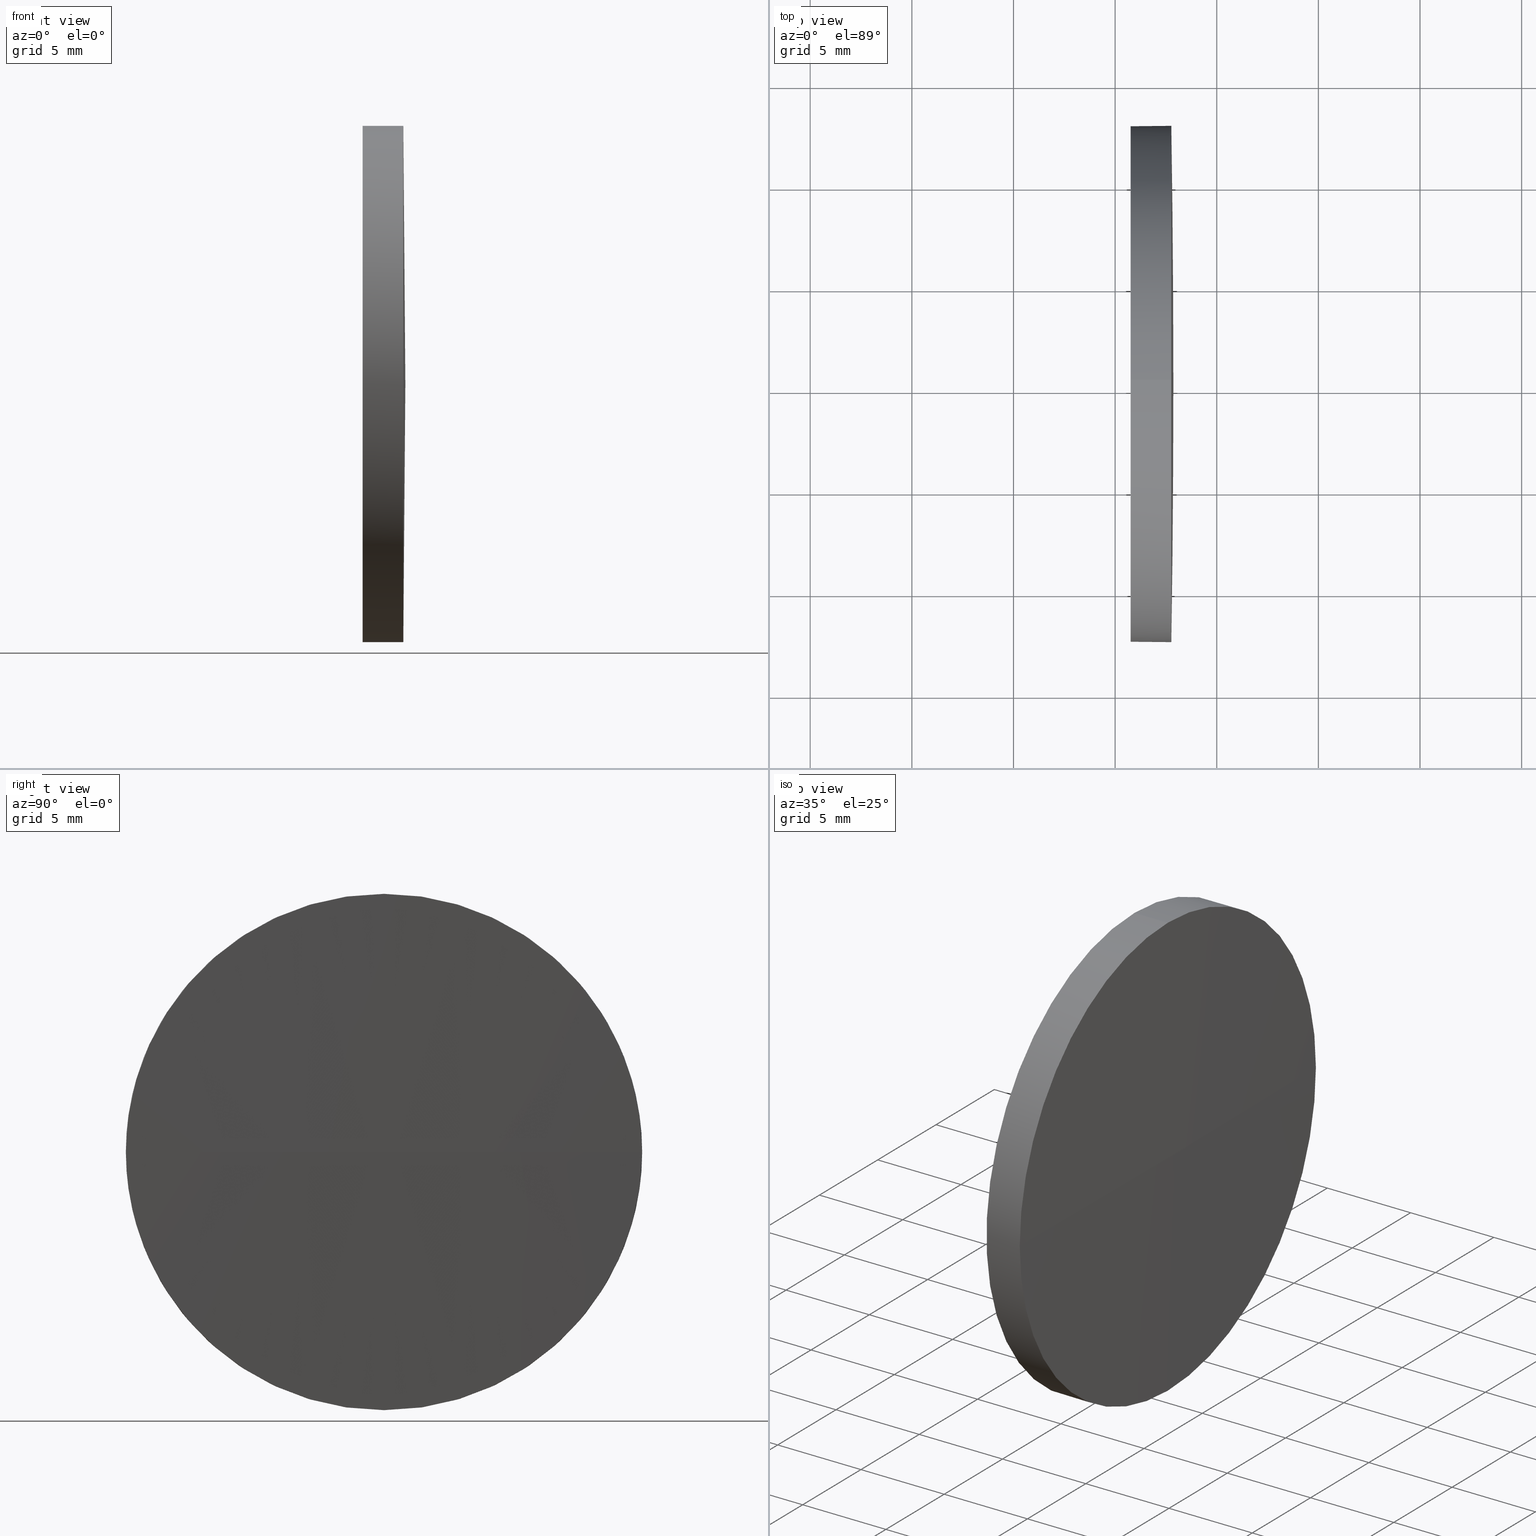
[diagram: canonical four-view strip — front | top / right | iso, engineering-drawing reading convention]
A machine part, canonical four-view strip (front | top / right | iso — engineering-drawing reading convention). The complete STEP part file that produces these views, byte-faithful:
ISO-10303-21;
HEADER;
FILE_DESCRIPTION (( 'STEP AP214' ),
    '1' );
FILE_NAME ('100521.STEP',
    '2019-06-13T03:09:54',
    ( '' ),
    ( '' ),
    'SwSTEP 2.0',
    'SolidWorks 2016',
    '' );
FILE_SCHEMA (( 'AUTOMOTIVE_DESIGN' ));
ENDSEC;

DATA;
#1 = ORIENTED_EDGE ( 'NONE', *, *, #150, .F. ) ;
#2 = DIRECTION ( 'NONE',  ( 0.0000000000000000000, 1.000000000000000000, 1.224646799147353500E-016 ) ) ;
#3 = EDGE_CURVE ( 'NONE', #145, #9, #140, .T. ) ;
#4 = DIRECTION ( 'NONE',  ( -1.000000000000000000, -0.0000000000000000000, -0.0000000000000000000 ) ) ;
#5 = VERTEX_POINT ( 'NONE', #112 ) ;
#6 = CARTESIAN_POINT ( 'NONE',  ( 115.7645554762012000, 65.23355492641219700, 0.0000000000000000000 ) ) ;
#7 = AXIS2_PLACEMENT_3D ( 'NONE', #133, #57, #54 ) ;
#8 = LINE ( 'NONE', #120, #185 ) ;
#9 = VERTEX_POINT ( 'NONE', #15 ) ;
#10 = ORIENTED_EDGE ( 'NONE', *, *, #183, .F. ) ;
#11 = ORIENTED_EDGE ( 'NONE', *, *, #114, .T. ) ;
#12 = AXIS2_PLACEMENT_3D ( 'NONE', #173, #141, #105 ) ;
#13 = EDGE_CURVE ( 'NONE', #137, #138, #101, .T. ) ;
#14 = CLOSED_SHELL ( 'NONE', ( #139, #182, #78, #129, #186 ) ) ;
#15 = CARTESIAN_POINT ( 'NONE',  ( 117.7645554762012100, 52.53355492641213000, -1.555301434917037300E-015 ) ) ;
#16 = COLOUR_RGB ( '',1.000000000000000000, 1.000000000000000000, 1.000000000000000000 ) ;
#17 = CIRCLE ( 'NONE', #110, 806.5000000000459300 ) ;
#18 = AXIS2_PLACEMENT_3D ( 'NONE', #116, #131, #53 ) ;
#19 = DIRECTION ( 'NONE',  ( 0.0000000000000000000, 0.0000000000000000000, 1.000000000000000000 ) ) ;
#20 =( NAMED_UNIT ( * ) PLANE_ANGLE_UNIT ( ) SI_UNIT ( $, .RADIAN. ) );
#21 = CARTESIAN_POINT ( 'NONE',  ( 117.7645554762012000, 65.23355492641219700, -12.70000000000000300 ) ) ;
#22 =( NAMED_UNIT ( * ) SI_UNIT ( $, .STERADIAN. ) SOLID_ANGLE_UNIT ( ) );
#23 = CIRCLE ( 'NONE', #154, 12.70000000000000300 ) ;
#24 = COLOUR_RGB ( '',1.000000000000000000, 1.000000000000000000, 1.000000000000000000 ) ;
#25 = APPLICATION_CONTEXT ( 'automotive_design' ) ;
#26 =( NAMED_UNIT ( * ) PLANE_ANGLE_UNIT ( ) SI_UNIT ( $, .RADIAN. ) );
#27 = AXIS2_PLACEMENT_3D ( 'NONE', #144, #132, #155 ) ;
#28 = DIRECTION ( 'NONE',  ( 1.000000000000000000, 0.0000000000000000000, 0.0000000000000000000 ) ) ;
#29 = PRESENTATION_STYLE_ASSIGNMENT (( #159 ) ) ;
#30 = DIRECTION ( 'NONE',  ( 0.0000000000000000000, 0.0000000000000000000, -1.000000000000000000 ) ) ;
#31 = EDGE_CURVE ( 'NONE', #93, #9, #17, .T. ) ;
#32 = PRODUCT ( '100521', '100521', '', ( #73 ) ) ;
#33 =( GEOMETRIC_REPRESENTATION_CONTEXT ( 3 ) GLOBAL_UNCERTAINTY_ASSIGNED_CONTEXT ( ( #168 ) ) GLOBAL_UNIT_ASSIGNED_CONTEXT ( ( #109, #26, #163 ) ) REPRESENTATION_CONTEXT ( 'NONE', 'WORKASPACE' ) );
#34 = CYLINDRICAL_SURFACE ( 'NONE', #151, 12.70000000000000300 ) ;
#35 = AXIS2_PLACEMENT_3D ( 'NONE', #108, #157, #143 ) ;
#36 = PRODUCT_DEFINITION_SHAPE ( 'NONE', 'NONE',  #41 ) ;
#37 = ORIENTED_EDGE ( 'NONE', *, *, #130, .T. ) ;
#38 = ORIENTED_EDGE ( 'NONE', *, *, #3, .F. ) ;
#39 = FILL_AREA_STYLE ('',( #158 ) ) ;
#40 = CARTESIAN_POINT ( 'NONE',  ( 117.7645554762012000, 65.23355492641219700, 0.0000000000000000000 ) ) ;
#41 = PRODUCT_DEFINITION ( 'δ֪', '', #51, #67 ) ;
#42 =( GEOMETRIC_REPRESENTATION_CONTEXT ( 3 ) GLOBAL_UNCERTAINTY_ASSIGNED_CONTEXT ( ( #60 ) ) GLOBAL_UNIT_ASSIGNED_CONTEXT ( ( #125, #61, #43 ) ) REPRESENTATION_CONTEXT ( 'NONE', 'WORKASPACE' ) );
#43 =( NAMED_UNIT ( * ) SI_UNIT ( $, .STERADIAN. ) SOLID_ANGLE_UNIT ( ) );
#44 = ORIENTED_EDGE ( 'NONE', *, *, #91, .T. ) ;
#45 = DIRECTION ( 'NONE',  ( 0.0000000000000000000, 0.0000000000000000000, 1.000000000000000000 ) ) ;
#46 = PRESENTATION_LAYER_ASSIGNMENT (  '', '', ( #167 ) ) ;
#47 = SURFACE_STYLE_FILL_AREA ( #126 ) ;
#48 = ORIENTED_EDGE ( 'NONE', *, *, #3, .T. ) ;
#49 = VERTEX_POINT ( 'NONE', #118 ) ;
#50 = AXIS2_PLACEMENT_3D ( 'NONE', #76, #88, #30 ) ;
#51 = PRODUCT_DEFINITION_FORMATION_WITH_SPECIFIED_SOURCE ( '�κ�', '', #32, .NOT_KNOWN. ) ;
#52 = CIRCLE ( 'NONE', #134, 12.70000000000000300 ) ;
#53 = DIRECTION ( 'NONE',  ( 0.0000000000000000000, 0.0000000000000000000, 1.000000000000000000 ) ) ;
#54 = DIRECTION ( 'NONE',  ( 1.000000000000000000, 0.0000000000000000000, 0.0000000000000000000 ) ) ;
#55 = CARTESIAN_POINT ( 'NONE',  ( -688.6354445238448500, 65.23355492641130100, 0.0000000000000000000 ) ) ;
#56 = DIRECTION ( 'NONE',  ( -1.000000000000000000, -0.0000000000000000000, -0.0000000000000000000 ) ) ;
#57 = DIRECTION ( 'NONE',  ( -0.0000000000000000000, 0.0000000000000000000, 1.000000000000000000 ) ) ;
#58 = ORIENTED_EDGE ( 'NONE', *, *, #183, .T. ) ;
#59 = SPHERICAL_SURFACE ( 'NONE', #124, 806.5000000000460400 ) ;
#60 = UNCERTAINTY_MEASURE_WITH_UNIT (LENGTH_MEASURE( 1.000000000000000100E-005 ), #125, 'distance_accuracy_value', 'NONE');
#61 =( NAMED_UNIT ( * ) PLANE_ANGLE_UNIT ( ) SI_UNIT ( $, .RADIAN. ) );
#62 = VECTOR ( 'NONE', #104, 1000.000000000000000 ) ;
#63 = MECHANICAL_DESIGN_GEOMETRIC_PRESENTATION_REPRESENTATION (  '', ( #167 ), #42 ) ;
#64 = CIRCLE ( 'NONE', #7, 806.5000000000460400 ) ;
#65 = EDGE_LOOP ( 'NONE', ( #153, #37, #128, #103 ) ) ;
#66 = EDGE_CURVE ( 'NONE', #9, #137, #179, .T. ) ;
#67 = PRODUCT_DEFINITION_CONTEXT ( 'detailed design', #121, 'design' ) ;
#68 = DIRECTION ( 'NONE',  ( -0.0000000000000000000, 0.0000000000000000000, -1.000000000000000000 ) ) ;
#69 = DIRECTION ( 'NONE',  ( 0.0000000000000000000, 1.224646799147353200E-016, -1.000000000000000000 ) ) ;
#70 = DIRECTION ( 'NONE',  ( -1.000000000000000000, -0.0000000000000000000, -0.0000000000000000000 ) ) ;
#71 = CARTESIAN_POINT ( 'NONE',  ( 117.7645554762012100, 77.93355492641137500, 0.0000000000000000000 ) ) ;
#72 = PRODUCT_RELATED_PRODUCT_CATEGORY ( 'part', '', ( #32 ) ) ;
#73 = PRODUCT_CONTEXT ( 'NONE', #25, 'mechanical' ) ;
#74 = MANIFOLD_SOLID_BREP ( '��ת1', #14 ) ;
#75 = MECHANICAL_DESIGN_GEOMETRIC_PRESENTATION_REPRESENTATION (  '', ( #96 ), #162 ) ;
#76 = CARTESIAN_POINT ( 'NONE',  ( 115.7645554762012000, 65.23355492641219700, 0.0000000000000000000 ) ) ;
#77 = FACE_OUTER_BOUND ( 'NONE', #156, .T. ) ;
#78 = ADVANCED_FACE ( 'NONE', ( #164 ), #59, .T. ) ;
#79 = FACE_OUTER_BOUND ( 'NONE', #123, .T. ) ;
#80 = ORIENTED_EDGE ( 'NONE', *, *, #91, .F. ) ;
#81 = DIRECTION ( 'NONE',  ( 0.0000000000000000000, 0.0000000000000000000, 1.000000000000000000 ) ) ;
#82 = CARTESIAN_POINT ( 'NONE',  ( 117.8645554762012300, 65.23355492641135800, 0.0000000000000000000 ) ) ;
#83 = AXIS2_PLACEMENT_3D ( 'NONE', #117, #181, #28 ) ;
#84 =( LENGTH_UNIT ( ) NAMED_UNIT ( * ) SI_UNIT ( .MILLI., .METRE. ) );
#85 = CARTESIAN_POINT ( 'NONE',  ( 117.7645554762012000, 65.23355492641219700, 0.0000000000000000000 ) ) ;
#86 = FILL_AREA_STYLE_COLOUR ( '', #16 ) ;
#87 = ORIENTED_EDGE ( 'NONE', *, *, #89, .F. ) ;
#88 = DIRECTION ( 'NONE',  ( 1.000000000000000000, 0.0000000000000000000, 0.0000000000000000000 ) ) ;
#89 = EDGE_CURVE ( 'NONE', #138, #145, #52, .T. ) ;
#90 = ORIENTED_EDGE ( 'NONE', *, *, #150, .T. ) ;
#91 = EDGE_CURVE ( 'NONE', #137, #49, #178, .T. ) ;
#92 = UNCERTAINTY_MEASURE_WITH_UNIT (LENGTH_MEASURE( 1.000000000000000100E-005 ), #84, 'distance_accuracy_value', 'NONE');
#93 = VERTEX_POINT ( 'NONE', #82 ) ;
#94 = PLANE ( 'NONE',  #50 ) ;
#95 = DIRECTION ( 'NONE',  ( 0.0000000000000000000, 1.000000000000000000, 0.0000000000000000000 ) ) ;
#96 = STYLED_ITEM ( 'NONE', ( #29 ), #74 ) ;
#97 = SURFACE_SIDE_STYLE ('',( #166 ) ) ;
#98 = ORIENTED_EDGE ( 'NONE', *, *, #114, .F. ) ;
#99 = APPLICATION_PROTOCOL_DEFINITION ( 'draft international standard', 'automotive_design', 1998, #121 ) ;
#100 = FACE_OUTER_BOUND ( 'NONE', #127, .T. ) ;
#101 = CIRCLE ( 'NONE', #35, 12.70000000000000300 ) ;
#102 = PRESENTATION_STYLE_ASSIGNMENT (( #161 ) ) ;
#103 = ORIENTED_EDGE ( 'NONE', *, *, #66, .F. ) ;
#104 = DIRECTION ( 'NONE',  ( -1.000000000000000000, -0.0000000000000000000, -0.0000000000000000000 ) ) ;
#105 = DIRECTION ( 'NONE',  ( 0.0000000000000000000, 0.0000000000000000000, 1.000000000000000000 ) ) ;
#106 = PRESENTATION_LAYER_ASSIGNMENT (  '', '', ( #96 ) ) ;
#107 = DIRECTION ( 'NONE',  ( -1.000000000000000000, -0.0000000000000000000, -0.0000000000000000000 ) ) ;
#108 = CARTESIAN_POINT ( 'NONE',  ( 117.7645554762012000, 65.23355492641219700, 0.0000000000000000000 ) ) ;
#109 =( LENGTH_UNIT ( ) NAMED_UNIT ( * ) SI_UNIT ( .MILLI., .METRE. ) );
#110 = AXIS2_PLACEMENT_3D ( 'NONE', #55, #69, #2 ) ;
#111 = ORIENTED_EDGE ( 'NONE', *, *, #31, .T. ) ;
#112 = CARTESIAN_POINT ( 'NONE',  ( 115.7645554762012000, 65.23355492641219700, -12.70000000000000300 ) ) ;
#113 = FACE_OUTER_BOUND ( 'NONE', #184, .T. ) ;
#114 = EDGE_CURVE ( 'NONE', #145, #5, #8, .T. ) ;
#115 = ORIENTED_EDGE ( 'NONE', *, *, #13, .T. ) ;
#116 = CARTESIAN_POINT ( 'NONE',  ( 117.7645554762012000, 65.23355492641219700, 0.0000000000000000000 ) ) ;
#117 = CARTESIAN_POINT ( 'NONE',  ( 0.0000000000000000000, 0.0000000000000000000, 0.0000000000000000000 ) ) ;
#118 = CARTESIAN_POINT ( 'NONE',  ( 115.7645554762012000, 65.23355492641219700, 12.70000000000000300 ) ) ;
#119 = ORIENTED_EDGE ( 'NONE', *, *, #130, .F. ) ;
#120 = CARTESIAN_POINT ( 'NONE',  ( 110.1653732284884500, 65.23355492641219700, -12.70000000000000300 ) ) ;
#121 = APPLICATION_CONTEXT ( 'automotive_design' ) ;
#122 = CYLINDRICAL_SURFACE ( 'NONE', #12, 12.70000000000000300 ) ;
#123 = EDGE_LOOP ( 'NONE', ( #98, #48, #160, #44, #1 ) ) ;
#124 = AXIS2_PLACEMENT_3D ( 'NONE', #174, #68, #95 ) ;
#125 =( LENGTH_UNIT ( ) NAMED_UNIT ( * ) SI_UNIT ( .MILLI., .METRE. ) );
#126 = FILL_AREA_STYLE ('',( #86 ) ) ;
#127 = EDGE_LOOP ( 'NONE', ( #119, #111, #38, #87 ) ) ;
#128 = ORIENTED_EDGE ( 'NONE', *, *, #13, .F. ) ;
#129 = ADVANCED_FACE ( 'NONE', ( #79 ), #34, .T. ) ;
#130 = EDGE_CURVE ( 'NONE', #93, #138, #64, .T. ) ;
#131 = DIRECTION ( 'NONE',  ( -1.000000000000000000, -0.0000000000000000000, -0.0000000000000000000 ) ) ;
#132 = DIRECTION ( 'NONE',  ( -0.0000000000000000000, 0.0000000000000000000, -1.000000000000000000 ) ) ;
#133 = CARTESIAN_POINT ( 'NONE',  ( -688.6354445238448500, 65.23355492641130100, 0.0000000000000000000 ) ) ;
#134 = AXIS2_PLACEMENT_3D ( 'NONE', #40, #70, #81 ) ;
#135 = DIRECTION ( 'NONE',  ( 0.0000000000000000000, 0.0000000000000000000, 1.000000000000000000 ) ) ;
#136 = CARTESIAN_POINT ( 'NONE',  ( 110.1653732284884500, 65.23355492641219700, 0.0000000000000000000 ) ) ;
#137 = VERTEX_POINT ( 'NONE', #142 ) ;
#138 = VERTEX_POINT ( 'NONE', #71 ) ;
#139 = ADVANCED_FACE ( 'NONE', ( #113 ), #122, .T. ) ;
#140 = CIRCLE ( 'NONE', #18, 12.70000000000000300 ) ;
#141 = DIRECTION ( 'NONE',  ( -1.000000000000000000, -0.0000000000000000000, -0.0000000000000000000 ) ) ;
#142 = CARTESIAN_POINT ( 'NONE',  ( 117.7645554762012000, 65.23355492641219700, 12.70000000000000300 ) ) ;
#143 = DIRECTION ( 'NONE',  ( 0.0000000000000000000, 0.0000000000000000000, 1.000000000000000000 ) ) ;
#144 = CARTESIAN_POINT ( 'NONE',  ( -688.6354445238448500, 65.23355492641130100, 0.0000000000000000000 ) ) ;
#145 = VERTEX_POINT ( 'NONE', #21 ) ;
#146 = CARTESIAN_POINT ( 'NONE',  ( 115.7645554762012000, 65.23355492641219700, 0.0000000000000000000 ) ) ;
#147 = ADVANCED_BREP_SHAPE_REPRESENTATION ( '100521', ( #74, #83 ), #33 ) ;
#148 = SHAPE_DEFINITION_REPRESENTATION ( #36, #147 ) ;
#149 = ORIENTED_EDGE ( 'NONE', *, *, #89, .T. ) ;
#150 = EDGE_CURVE ( 'NONE', #5, #49, #23, .T. ) ;
#151 = AXIS2_PLACEMENT_3D ( 'NONE', #136, #56, #19 ) ;
#152 = SPHERICAL_SURFACE ( 'NONE', #27, 806.5000000000460400 ) ;
#153 = ORIENTED_EDGE ( 'NONE', *, *, #31, .F. ) ;
#154 = AXIS2_PLACEMENT_3D ( 'NONE', #6, #107, #170 ) ;
#155 = DIRECTION ( 'NONE',  ( 0.0000000000000000000, 1.000000000000000000, 0.0000000000000000000 ) ) ;
#156 = EDGE_LOOP ( 'NONE', ( #58, #90 ) ) ;
#157 = DIRECTION ( 'NONE',  ( -1.000000000000000000, -0.0000000000000000000, -0.0000000000000000000 ) ) ;
#158 = FILL_AREA_STYLE_COLOUR ( '', #24 ) ;
#159 = SURFACE_STYLE_USAGE ( .BOTH. , #97 ) ;
#160 = ORIENTED_EDGE ( 'NONE', *, *, #66, .T. ) ;
#161 = SURFACE_STYLE_USAGE ( .BOTH. , #176 ) ;
#162 =( GEOMETRIC_REPRESENTATION_CONTEXT ( 3 ) GLOBAL_UNCERTAINTY_ASSIGNED_CONTEXT ( ( #92 ) ) GLOBAL_UNIT_ASSIGNED_CONTEXT ( ( #84, #20, #22 ) ) REPRESENTATION_CONTEXT ( 'NONE', 'WORKASPACE' ) );
#163 =( NAMED_UNIT ( * ) SI_UNIT ( $, .STERADIAN. ) SOLID_ANGLE_UNIT ( ) );
#164 = FACE_OUTER_BOUND ( 'NONE', #65, .T. ) ;
#165 = APPLICATION_PROTOCOL_DEFINITION ( 'draft international standard', 'automotive_design', 1998, #25 ) ;
#166 = SURFACE_STYLE_FILL_AREA ( #39 ) ;
#167 = STYLED_ITEM ( 'NONE', ( #102 ), #147 ) ;
#168 = UNCERTAINTY_MEASURE_WITH_UNIT (LENGTH_MEASURE( 1.000000000000000100E-005 ), #109, 'distance_accuracy_value', 'NONE');
#169 = CIRCLE ( 'NONE', #171, 12.70000000000000300 ) ;
#170 = DIRECTION ( 'NONE',  ( 0.0000000000000000000, 0.0000000000000000000, 1.000000000000000000 ) ) ;
#171 = AXIS2_PLACEMENT_3D ( 'NONE', #146, #177, #45 ) ;
#172 = DIRECTION ( 'NONE',  ( -1.000000000000000000, -0.0000000000000000000, -0.0000000000000000000 ) ) ;
#173 = CARTESIAN_POINT ( 'NONE',  ( 110.1653732284884500, 65.23355492641219700, 0.0000000000000000000 ) ) ;
#174 = CARTESIAN_POINT ( 'NONE',  ( -688.6354445238448500, 65.23355492641130100, 0.0000000000000000000 ) ) ;
#175 = CARTESIAN_POINT ( 'NONE',  ( 110.1653732284884500, 65.23355492641219700, 12.70000000000000300 ) ) ;
#176 = SURFACE_SIDE_STYLE ('',( #47 ) ) ;
#177 = DIRECTION ( 'NONE',  ( -1.000000000000000000, -0.0000000000000000000, -0.0000000000000000000 ) ) ;
#178 = LINE ( 'NONE', #175, #62 ) ;
#179 = CIRCLE ( 'NONE', #180, 12.70000000000000300 ) ;
#180 = AXIS2_PLACEMENT_3D ( 'NONE', #85, #172, #135 ) ;
#181 = DIRECTION ( 'NONE',  ( 0.0000000000000000000, 0.0000000000000000000, 1.000000000000000000 ) ) ;
#182 = ADVANCED_FACE ( 'NONE', ( #100 ), #152, .T. ) ;
#183 = EDGE_CURVE ( 'NONE', #49, #5, #169, .T. ) ;
#184 = EDGE_LOOP ( 'NONE', ( #149, #11, #10, #80, #115 ) ) ;
#185 = VECTOR ( 'NONE', #4, 1000.000000000000000 ) ;
#186 = ADVANCED_FACE ( 'NONE', ( #77 ), #94, .F. ) ;
ENDSEC;
END-ISO-10303-21;
